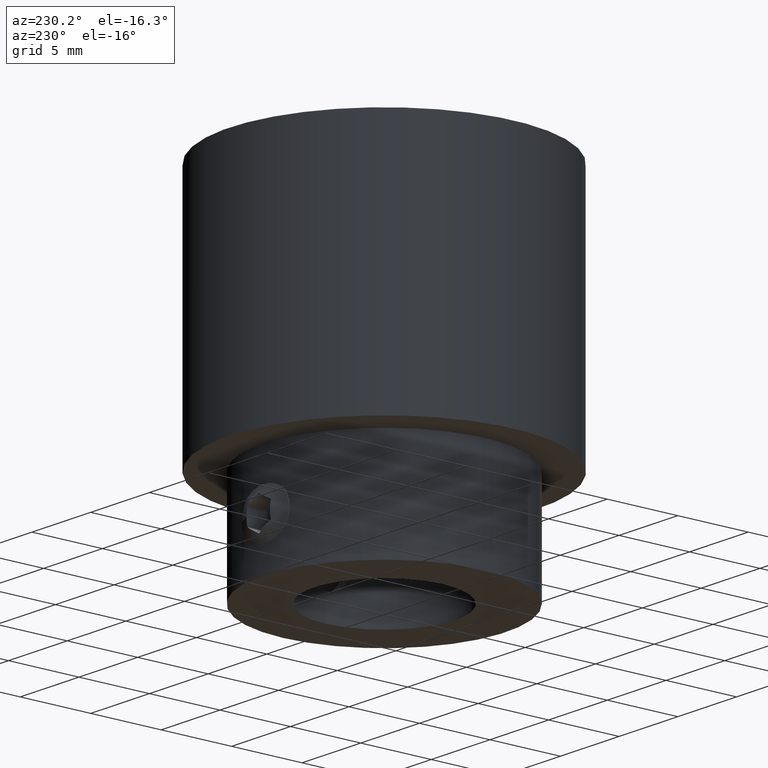
[diagram: clean part render]
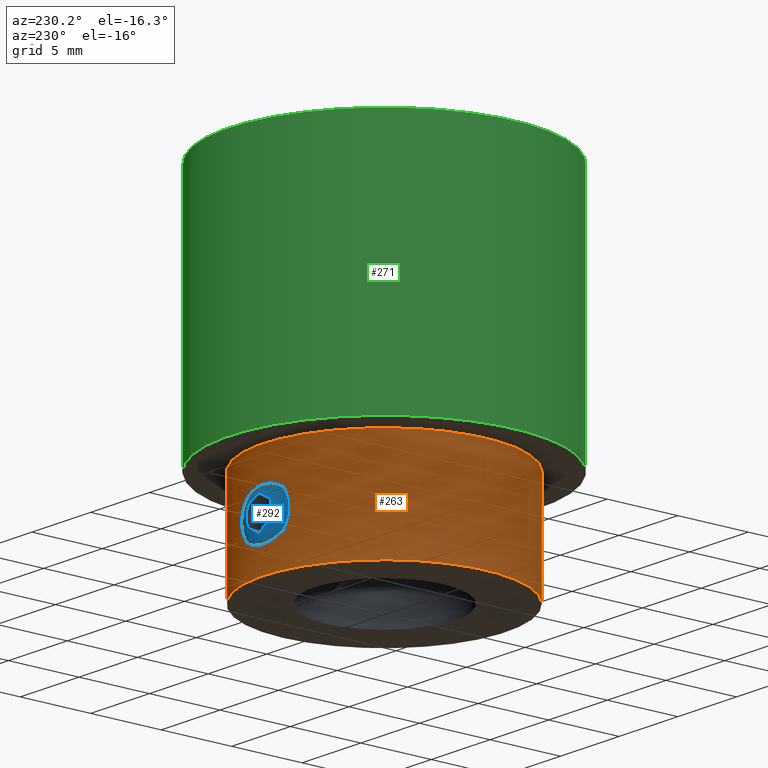
[diagram: same view with three faces highlighted in distinct colors, each labeled with its STEP entity id]
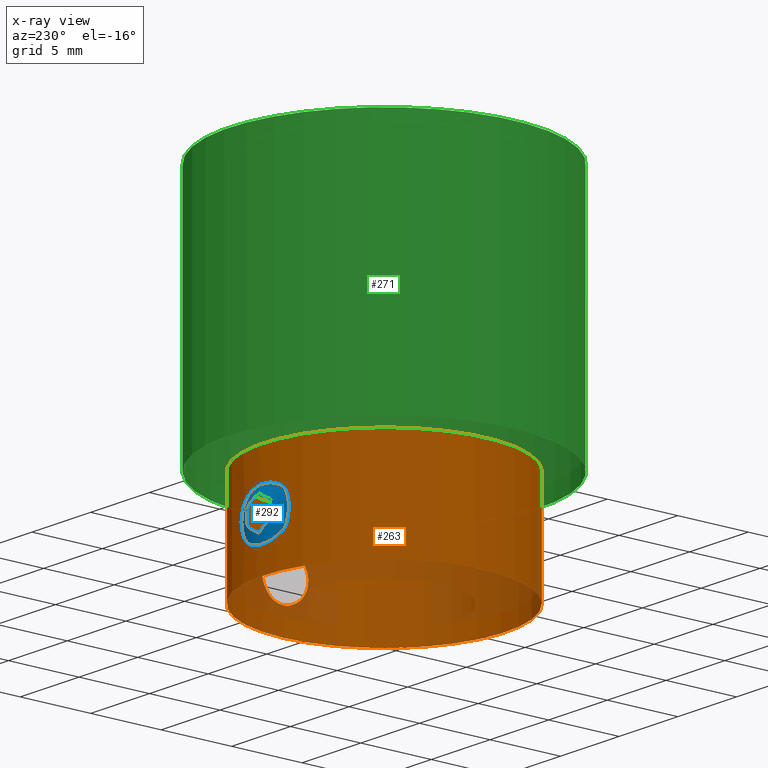
[diagram: x-ray of the same camera — body ghosted, the three highlighted faces saturated]
A machine part, auxiliary view with three faces highlighted in distinct colors.
The next image is the same camera in x-ray (body ghosted, the three faces saturated) — at least one of them is partly hidden behind the body in this view.
Their STEP definitions:

[orange] entity #263 — the highlighted cylindrical surface (bore or boss wall) has radius 8.6 mm, axis along (-0, 0, -1).
#263 = ADVANCED_FACE( '', ( #304, #305, #306, #307 ), #308, .T. );
#304 = FACE_BOUND( '', #396, .T. );
#305 = FACE_OUTER_BOUND( '', #397, .T. );
#306 = FACE_BOUND( '', #398, .T. );
#307 = FACE_OUTER_BOUND( '', #399, .T. );
#308 = CYLINDRICAL_SURFACE( '', #400, 8.60000000000000 );
#396 = EDGE_LOOP( '', ( #488 ) );
#397 = EDGE_LOOP( '', ( #489 ) );
#398 = EDGE_LOOP( '', ( #490 ) );
#399 = EDGE_LOOP( '', ( #491 ) );
#400 = AXIS2_PLACEMENT_3D( '', #492, #493, #494 );
#488 = ORIENTED_EDGE( '', *, *, #704, .F. );
#489 = ORIENTED_EDGE( '', *, *, #705, .T. );
#490 = ORIENTED_EDGE( '', *, *, #706, .F. );
#491 = ORIENTED_EDGE( '', *, *, #707, .T. );
#492 = CARTESIAN_POINT( '', ( 0.000000000000000, 0.000000000000000, -25.0000000000000 ) );
#493 = DIRECTION( '', ( -0.000000000000000, 0.000000000000000, -1.00000000000000 ) );
#494 = DIRECTION( '', ( 1.00000000000000, 0.000000000000000, 0.000000000000000 ) );
#704 = EDGE_CURVE( '', #762, #762, #763, .T. );
#705 = EDGE_CURVE( '', #764, #764, #765, .T. );
#706 = EDGE_CURVE( '', #766, #766, #767, .T. );
#707 = EDGE_CURVE( '', #768, #768, #769, .F. );
#762 = VERTEX_POINT( '', #862 );
#763 = B_SPLINE_CURVE_WITH_KNOTS( '', 3, ( #863, #864, #865, #866, #867, #868, #869, #870, #871, #872, #873, #874, #875, #876, #877, #878, #879, #880, #881, #882, #883, #884, #885, #886, #887, #888, #889, #890, #891, #892, #893, #894, #895, #896, #897, #898, #899, #900, #901, #902, #903, #904, #905, #906, #907, #908, #909, #910, #911, #912, #913, #914 ), .UNSPECIFIED., .T., .F., ( 2, 2, 2, 2, 2, 2, 2, 2, 2, 2, 2, 2, 2, 2, 2, 2, 2, 2, 2, 2, 2, 2, 2, 2, 2, 2, 2, 2 ), ( -0.000646285377300705, 0.000000000000000, 0.000323142688650352, 0.000646285377300703, 0.000969428065951055, 0.00129257075460141, 0.00193885613190212, 0.00258514150920283, 0.00290828419785318, 0.00323142688650353, 0.00387771226380423, 0.00420085495245458, 0.00452399764110493, 0.00484714032975529, 0.00517028301840564, 0.00581656839570634, 0.00613971108435670, 0.00646285377300705, 0.00678599646165740, 0.00710913915030776, 0.00775542452760846, 0.00807856721625882, 0.00840170990490917, 0.00872485259355952, 0.00904799528220987, 0.00969428065951058, 0.0103405660368113, 0.0106637087254616 ), .UNSPECIFIED. );
#764 = VERTEX_POINT( '', #915 );
#765 = CIRCLE( '', #916, 8.60000000000000 );
#766 = VERTEX_POINT( '', #917 );
#767 = B_SPLINE_CURVE_WITH_KNOTS( '', 3, ( #918, #919, #920, #921, #922, #923, #924, #925, #926, #927, #928, #929, #930, #931, #932, #933, #934, #935, #936, #937, #938, #939, #940, #941, #942, #943, #944, #945, #946, #947, #948, #949, #950, #951, #952, #953, #954, #955, #956, #957, #958, #959, #960, #961, #962, #963, #964, #965, #966, #967, #968, #969 ), .UNSPECIFIED., .T., .F., ( 2, 2, 2, 2, 2, 2, 2, 2, 2, 2, 2, 2, 2, 2, 2, 2, 2, 2, 2, 2, 2, 2, 2, 2, 2, 2, 2, 2 ), ( -0.000646285377300707, 0.000000000000000, 0.000323142688650356, 0.000646285377300713, 0.000969428065951070, 0.00129257075460143, 0.00193885613190213, 0.00258514150920284, 0.00290828419785319, 0.00323142688650354, 0.00387771226380423, 0.00420085495245458, 0.00452399764110494, 0.00484714032975529, 0.00517028301840564, 0.00581656839570634, 0.00613971108435670, 0.00646285377300705, 0.00678599646165740, 0.00710913915030776, 0.00775542452760846, 0.00807856721625881, 0.00840170990490917, 0.00872485259355952, 0.00904799528220987, 0.00969428065951058, 0.0103405660368113, 0.0106637087254616 ), .UNSPECIFIED. );
#768 = VERTEX_POINT( '', #970 );
#769 = CIRCLE( '', #971, 8.60000000000000 );
#862 = CARTESIAN_POINT( '', ( -0.205798515715232, 8.59753726196814, -19.8628845578487 ) );
#863 = CARTESIAN_POINT( '', ( -0.422581525443693, 8.59234814556479, -19.8901359174571 ) );
#864 = CARTESIAN_POINT( '', ( -0.0974070108510024, 8.60013182016981, -19.8492588780446 ) );
#865 = CARTESIAN_POINT( '', ( 0.0105193314926673, 8.60066528858247, -19.8465186378541 ) );
#866 = CARTESIAN_POINT( '', ( 0.225478745194036, 8.59771559183183, -19.8619308296764 ) );
#867 = CARTESIAN_POINT( '', ( 0.333695845721433, 8.59415850167469, -19.8804762068752 ) );
#868 = CARTESIAN_POINT( '', ( 0.542357850730834, 8.58351683350768, -19.9379314369402 ) );
#869 = CARTESIAN_POINT( '', ( 0.642715734114635, 8.57649621742749, -19.9764995935637 ) );
#870 = CARTESIAN_POINT( '', ( 0.835605937730236, 8.55985593332367, -20.0731504213407 ) );
#871 = CARTESIAN_POINT( '', ( 0.928262108096357, 8.55018216850542, -20.1316577386514 ) );
#872 = CARTESIAN_POINT( '', ( 1.18254755280953, 8.52001900873270, -20.3294421725412 ) );
#873 = CARTESIAN_POINT( '', ( 1.32711639114375, 8.49766941046281, -20.4963410382691 ) );
#874 = CARTESIAN_POINT( '', ( 1.53972322128648, 8.46173006701283, -20.8692689725910 ) );
#875 = CARTESIAN_POINT( '', ( 1.60997658106643, 8.44800172924577, -21.0792701184449 ) );
#876 = CARTESIAN_POINT( '', ( 1.65051410313653, 8.44014174333452, -21.4003117281154 ) );
#877 = CARTESIAN_POINT( '', ( 1.65349854536264, 8.43955002920670, -21.5104536355721 ) );
#878 = CARTESIAN_POINT( '', ( 1.63802475876778, 8.44256696891786, -21.7259238979763 ) );
#879 = CARTESIAN_POINT( '', ( 1.61987078409112, 8.44611572884039, -21.8320736181738 ) );
#880 = CARTESIAN_POINT( '', ( 1.53380231609799, 8.46231998352700, -22.1457301567129 ) );
#881 = CARTESIAN_POINT( '', ( 1.43590495484837, 8.48034872776598, -22.3412698084271 ) );
#882 = CARTESIAN_POINT( '', ( 1.23622255670825, 8.51095107413124, -22.5981886325983 ) );
#883 = CARTESIAN_POINT( '', ( 1.16230413372087, 8.52148638656255, -22.6760411845873 ) );
#884 = CARTESIAN_POINT( '', ( 1.00012482021235, 8.54203907036432, -22.8167285639437 ) );
#885 = CARTESIAN_POINT( '', ( 0.910760570829389, 8.55215568100735, -22.8800858599048 ) );
#886 = CARTESIAN_POINT( '', ( 0.723445823893118, 8.57003370760322, -22.9868584122163 ) );
#887 = CARTESIAN_POINT( '', ( 0.625409529792178, 8.57784369327035, -23.0306978684398 ) );
#888 = CARTESIAN_POINT( '', ( 0.420465275734565, 8.59032877473465, -23.0991816645718 ) );
#889 = CARTESIAN_POINT( '', ( 0.313305951526759, 8.59495625674002, -23.1235603266962 ) );
#890 = CARTESIAN_POINT( '', ( -0.00738672665648147, 8.60265541181417, -23.1639953278196 ) );
#891 = CARTESIAN_POINT( '', ( -0.228906515948489, 8.59946530491471, -23.1481609896733 ) );
#892 = CARTESIAN_POINT( '', ( -0.540280051367268, 8.58364129591652, -23.0627477967752 ) );
#893 = CARTESIAN_POINT( '', ( -0.642424180531690, 8.57652111348330, -23.0236446496159 ) );
#894 = CARTESIAN_POINT( '', ( -0.835852518349314, 8.55983491694353, -22.9267278694986 ) );
#895 = CARTESIAN_POINT( '', ( -0.926653803998528, 8.55035918041763, -22.8694505326269 ) );
#896 = CARTESIAN_POINT( '', ( -1.09668863061983, 8.53021708012675, -22.7374797296304 ) );
#897 = CARTESIAN_POINT( '', ( -1.17622878445281, 8.51948025150054, -22.6621199350582 ) );
#898 = CARTESIAN_POINT( '', ( -1.31696449888344, 8.49886241903960, -22.4998206866812 ) );
#899 = CARTESIAN_POINT( '', ( -1.37910103460244, 8.48887794726028, -22.4123136130675 ) );
#900 = CARTESIAN_POINT( '', ( -1.54026745638570, 8.46164582284633, -22.1300947005951 ) );
#901 = CARTESIAN_POINT( '', ( -1.60967417969636, 8.44806028075725, -21.9229185698425 ) );
#902 = CARTESIAN_POINT( '', ( -1.65062851759585, 8.44011960015507, -21.5988851216008 ) );
#903 = CARTESIAN_POINT( '', ( -1.65349552219452, 8.43955050195886, -21.4911038832028 ) );
#904 = CARTESIAN_POINT( '', ( -1.63827512531940, 8.44251826949702, -21.2759884008112 ) );
#905 = CARTESIAN_POINT( '', ( -1.61976066922721, 8.44613648338648, -21.1675189445467 ) );
#906 = CARTESIAN_POINT( '', ( -1.56258876366552, 8.45690028776701, -20.9591815152225 ) );
#907 = CARTESIAN_POINT( '', ( -1.52413939012815, 8.46400655964568, -20.8587639497587 ) );
#908 = CARTESIAN_POINT( '', ( -1.42745405082271, 8.48084800329867, -20.6653986068433 ) );
#909 = CARTESIAN_POINT( '', ( -1.36916354266509, 8.49057260881214, -20.5729580889012 ) );
#910 = CARTESIAN_POINT( '', ( -1.17174997299425, 8.52084092851667, -20.3186600629896 ) );
#911 = CARTESIAN_POINT( '', ( -1.00498481278817, 8.54313124196799, -20.1738693473668 ) );
#912 = CARTESIAN_POINT( '', ( -0.632060907929131, 8.57878691308347, -19.9608067078966 ) );
#913 = CARTESIAN_POINT( '', ( -0.422581525443693, 8.59234814556479, -19.8901359174571 ) );
#914 = CARTESIAN_POINT( '', ( -0.0974070108510024, 8.60013182016981, -19.8492588780446 ) );
#915 = CARTESIAN_POINT( '', ( 8.60000000000000, 0.000000000000000, -25.0000000000000 ) );
#916 = AXIS2_PLACEMENT_3D( '', #1258, #1259, #1260 );
#917 = CARTESIAN_POINT( '', ( 8.59753726196814, 0.205798515715233, -19.8628845578487 ) );
#918 = CARTESIAN_POINT( '', ( 8.59234814556479, 0.422581525443691, -19.8901359174570 ) );
#919 = CARTESIAN_POINT( '', ( 8.60013182016980, 0.0974070108510030, -19.8492588780446 ) );
#920 = CARTESIAN_POINT( '', ( 8.60066528858247, -0.0105193314926668, -19.8465186378541 ) );
#921 = CARTESIAN_POINT( '', ( 8.59771559183184, -0.225478745194036, -19.8619308296764 ) );
#922 = CARTESIAN_POINT( '', ( 8.59415850167469, -0.333695845721432, -19.8804762068752 ) );
#923 = CARTESIAN_POINT( '', ( 8.58351683350768, -0.542357850730833, -19.9379314369402 ) );
#924 = CARTESIAN_POINT( '', ( 8.57649621742748, -0.642715734114634, -19.9764995935637 ) );
#925 = CARTESIAN_POINT( '', ( 8.55985593332367, -0.835605937730235, -20.0731504213407 ) );
#926 = CARTESIAN_POINT( '', ( 8.55018216850542, -0.928262108096353, -20.1316577386513 ) );
#927 = CARTESIAN_POINT( '', ( 8.52001900873270, -1.18254755280952, -20.3294421725412 ) );
#928 = CARTESIAN_POINT( '', ( 8.49766941046281, -1.32711639114375, -20.4963410382691 ) );
#929 = CARTESIAN_POINT( '', ( 8.46173006701282, -1.53972322128648, -20.8692689725910 ) );
#930 = CARTESIAN_POINT( '', ( 8.44800172924576, -1.60997658106643, -21.0792701184449 ) );
#931 = CARTESIAN_POINT( '', ( 8.44014174333452, -1.65051410313653, -21.4003117281154 ) );
#932 = CARTESIAN_POINT( '', ( 8.43955002920670, -1.65349854536264, -21.5104536355721 ) );
#933 = CARTESIAN_POINT( '', ( 8.44256696891786, -1.63802475876778, -21.7259238979763 ) );
#934 = CARTESIAN_POINT( '', ( 8.44611572884039, -1.61987078409112, -21.8320736181738 ) );
#935 = CARTESIAN_POINT( '', ( 8.46231998352699, -1.53380231609799, -22.1457301567129 ) );
#936 = CARTESIAN_POINT( '', ( 8.48034872776598, -1.43590495484837, -22.3412698084271 ) );
#937 = CARTESIAN_POINT( '', ( 8.51095107413124, -1.23622255670824, -22.5981886325983 ) );
#938 = CARTESIAN_POINT( '', ( 8.52148638656255, -1.16230413372087, -22.6760411845873 ) );
#939 = CARTESIAN_POINT( '', ( 8.54203907036432, -1.00012482021235, -22.8167285639437 ) );
#940 = CARTESIAN_POINT( '', ( 8.55215568100735, -0.910760570829389, -22.8800858599048 ) );
#941 = CARTESIAN_POINT( '', ( 8.57003370760322, -0.723445823893119, -22.9868584122163 ) );
#942 = CARTESIAN_POINT( '', ( 8.57784369327035, -0.625409529792178, -23.0306978684398 ) );
#943 = CARTESIAN_POINT( '', ( 8.59032877473466, -0.420465275734566, -23.0991816645718 ) );
#944 = CARTESIAN_POINT( '', ( 8.59495625674002, -0.313305951526760, -23.1235603266962 ) );
#945 = CARTESIAN_POINT( '', ( 8.60265541181417, 0.00738672665648041, -23.1639953278196 ) );
#946 = CARTESIAN_POINT( '', ( 8.59946530491471, 0.228906515948489, -23.1481609896733 ) );
#947 = CARTESIAN_POINT( '', ( 8.58364129591652, 0.540280051367266, -23.0627477967752 ) );
#948 = CARTESIAN_POINT( '', ( 8.57652111348330, 0.642424180531690, -23.0236446496159 ) );
#949 = CARTESIAN_POINT( '', ( 8.55983491694353, 0.835852518349314, -22.9267278694986 ) );
#950 = CARTESIAN_POINT( '', ( 8.55035918041764, 0.926653803998528, -22.8694505326269 ) );
#951 = CARTESIAN_POINT( '', ( 8.53021708012676, 1.09668863061983, -22.7374797296304 ) );
#952 = CARTESIAN_POINT( '', ( 8.51948025150054, 1.17622878445281, -22.6621199350582 ) );
#953 = CARTESIAN_POINT( '', ( 8.49886241903960, 1.31696449888344, -22.4998206866812 ) );
#954 = CARTESIAN_POINT( '', ( 8.48887794726028, 1.37910103460244, -22.4123136130675 ) );
#955 = CARTESIAN_POINT( '', ( 8.46164582284633, 1.54026745638570, -22.1300947005951 ) );
#956 = CARTESIAN_POINT( '', ( 8.44806028075725, 1.60967417969636, -21.9229185698425 ) );
#957 = CARTESIAN_POINT( '', ( 8.44011960015507, 1.65062851759585, -21.5988851216008 ) );
#958 = CARTESIAN_POINT( '', ( 8.43955050195886, 1.65349552219452, -21.4911038832028 ) );
#959 = CARTESIAN_POINT( '', ( 8.44251826949702, 1.63827512531940, -21.2759884008112 ) );
#960 = CARTESIAN_POINT( '', ( 8.44613648338649, 1.61976066922721, -21.1675189445467 ) );
#961 = CARTESIAN_POINT( '', ( 8.45690028776701, 1.56258876366552, -20.9591815152225 ) );
#962 = CARTESIAN_POINT( '', ( 8.46400655964568, 1.52413939012815, -20.8587639497587 ) );
#963 = CARTESIAN_POINT( '', ( 8.48084800329867, 1.42745405082271, -20.6653986068433 ) );
#964 = CARTESIAN_POINT( '', ( 8.49057260881214, 1.36916354266510, -20.5729580889012 ) );
#965 = CARTESIAN_POINT( '', ( 8.52084092851667, 1.17174997299426, -20.3186600629896 ) );
#966 = CARTESIAN_POINT( '', ( 8.54313124196799, 1.00498481278817, -20.1738693473668 ) );
#967 = CARTESIAN_POINT( '', ( 8.57878691308347, 0.632060907929132, -19.9608067078966 ) );
#968 = CARTESIAN_POINT( '', ( 8.59234814556479, 0.422581525443691, -19.8901359174570 ) );
#969 = CARTESIAN_POINT( '', ( 8.60013182016980, 0.0974070108510030, -19.8492588780446 ) );
#970 = CARTESIAN_POINT( '', ( 8.60000000000000, 0.000000000000000, -17.5000000000000 ) );
#971 = AXIS2_PLACEMENT_3D( '', #1261, #1262, #1263 );
#1258 = CARTESIAN_POINT( '', ( 0.000000000000000, 0.000000000000000, -25.0000000000000 ) );
#1259 = DIRECTION( '', ( 0.000000000000000, 0.000000000000000, 1.00000000000000 ) );
#1260 = DIRECTION( '', ( 1.00000000000000, 0.000000000000000, -0.000000000000000 ) );
#1261 = CARTESIAN_POINT( '', ( 0.000000000000000, 0.000000000000000, -17.5000000000000 ) );
#1262 = DIRECTION( '', ( 0.000000000000000, 0.000000000000000, 1.00000000000000 ) );
#1263 = DIRECTION( '', ( 1.00000000000000, 0.000000000000000, -0.000000000000000 ) );

[blue] entity #292 — the highlighted conical surface has half-angle 63.435 deg.
#292 = ADVANCED_FACE( '', ( #370, #371 ), #372, .T. );
#370 = FACE_OUTER_BOUND( '', #462, .T. );
#371 = FACE_BOUND( '', #463, .T. );
#372 = CONICAL_SURFACE( '', #464, 2.00000000000000, 1.10714871779409 );
#462 = EDGE_LOOP( '', ( #628 ) );
#463 = EDGE_LOOP( '', ( #629, #630, #631, #632, #633, #634 ) );
#464 = AXIS2_PLACEMENT_3D( '', #635, #636, #637 );
#628 = ORIENTED_EDGE( '', *, *, #740, .F. );
#629 = ORIENTED_EDGE( '', *, *, #741, .T. );
#630 = ORIENTED_EDGE( '', *, *, #742, .T. );
#631 = ORIENTED_EDGE( '', *, *, #743, .T. );
#632 = ORIENTED_EDGE( '', *, *, #744, .T. );
#633 = ORIENTED_EDGE( '', *, *, #745, .T. );
#634 = ORIENTED_EDGE( '', *, *, #746, .T. );
#635 = CARTESIAN_POINT( '', ( 4.19714393776968E-016, 8.45445622475297, -21.5000000000000 ) );
#636 = DIRECTION( '', ( -6.12323399573677E-017, -1.00000000000000, -0.000000000000000 ) );
#637 = DIRECTION( '', ( 1.00000000000000, -6.12323399573677E-017, 0.000000000000000 ) );
#740 = EDGE_CURVE( '', #826, #826, #827, .T. );
#741 = EDGE_CURVE( '', #828, #829, #830, .T. );
#742 = EDGE_CURVE( '', #829, #831, #832, .T. );
#743 = EDGE_CURVE( '', #831, #833, #834, .T. );
#744 = EDGE_CURVE( '', #833, #835, #836, .F. );
#745 = EDGE_CURVE( '', #835, #837, #838, .T. );
#746 = EDGE_CURVE( '', #837, #828, #839, .T. );
#826 = VERTEX_POINT( '', #1180 );
#827 = CIRCLE( '', #1181, 2.00000000000000 );
#828 = VERTEX_POINT( '', #1182 );
#829 = VERTEX_POINT( '', #1183 );
#830 = B_SPLINE_CURVE_WITH_KNOTS( '', 3, ( #1184, #1185, #1186, #1187, #1188, #1189 ), .UNSPECIFIED., .F., .F., ( 4, 2, 4 ), ( 0.00103458309332886, 0.00161823594737898, 0.00220188880142910 ), .UNSPECIFIED. );
#831 = VERTEX_POINT( '', #1190 );
#832 = B_SPLINE_CURVE_WITH_KNOTS( '', 3, ( #1191, #1192, #1193, #1194, #1195, #1196 ), .UNSPECIFIED., .F., .F., ( 4, 2, 4 ), ( 2.34956865817659E-007, 0.000579233426840286, 0.00115823189681475 ), .UNSPECIFIED. );
#833 = VERTEX_POINT( '', #1197 );
#834 = B_SPLINE_CURVE_WITH_KNOTS( '', 3, ( #1198, #1199, #1200, #1201, #1202, #1203 ), .UNSPECIFIED., .F., .F., ( 4, 2, 4 ), ( 2.34956865817798E-007, 0.000579233426840286, 0.00115823189681475 ), .UNSPECIFIED. );
#835 = VERTEX_POINT( '', #1204 );
#836 = B_SPLINE_CURVE_WITH_KNOTS( '', 3, ( #1205, #1206, #1207, #1208, #1209, #1210 ), .UNSPECIFIED., .F., .F., ( 4, 2, 4 ), ( 0.00103458309332886, 0.00161823594737898, 0.00220188880142910 ), .UNSPECIFIED. );
#837 = VERTEX_POINT( '', #1211 );
#838 = B_SPLINE_CURVE_WITH_KNOTS( '', 3, ( #1212, #1213, #1214, #1215, #1216, #1217 ), .UNSPECIFIED., .F., .F., ( 4, 2, 4 ), ( 2.34956865817659E-007, 0.000579233426840286, 0.00115823189681475 ), .UNSPECIFIED. );
#839 = B_SPLINE_CURVE_WITH_KNOTS( '', 3, ( #1218, #1219, #1220, #1221, #1222, #1223 ), .UNSPECIFIED., .F., .F., ( 4, 2, 4 ), ( 2.34956865817826E-007, 0.000579233426840285, 0.00115823189681475 ), .UNSPECIFIED. );
#1180 = CARTESIAN_POINT( '', ( 2.00000000000000, 8.45445622475297, -21.5000000000000 ) );
#1181 = AXIS2_PLACEMENT_3D( '', #1309, #1310, #1311 );
#1182 = CARTESIAN_POINT( '', ( 1.00000000000000, 8.87710595556334, -22.0773502691896 ) );
#1183 = CARTESIAN_POINT( '', ( 1.00000000000000, 8.87710595556334, -20.9226497308104 ) );
#1184 = CARTESIAN_POINT( '', ( 1.00000000000000, 8.87710595556334, -22.0773502691896 ) );
#1185 = CARTESIAN_POINT( '', ( 1.00000000000000, 8.92445345520008, -21.8879602706427 ) );
#1186 = CARTESIAN_POINT( '', ( 1.00000000000000, 8.95443028101844, -21.6938974989258 ) );
#1187 = CARTESIAN_POINT( '', ( 1.00000000000000, 8.95448213263242, -21.3066380760690 ) );
#1188 = CARTESIAN_POINT( '', ( 1.00000000000000, 8.92406099729043, -21.1104698977178 ) );
#1189 = CARTESIAN_POINT( '', ( 1.00000000000000, 8.87710595556356, -20.9226497308103 ) );
#1190 = CARTESIAN_POINT( '', ( 4.45594225776839E-016, 8.87710595556334, -20.3452994616207 ) );
#1191 = CARTESIAN_POINT( '', ( 1.00000000000000, 8.87710595556334, -20.9226497308104 ) );
#1192 = CARTESIAN_POINT( '', ( 0.835714454593608, 8.92453110749551, -20.8277994269460 ) );
#1193 = CARTESIAN_POINT( '', ( 0.670138468625594, 8.95418263961288, -20.7322040868761 ) );
#1194 = CARTESIAN_POINT( '', ( 0.334720282664987, 8.95472587532345, -20.5385503069206 ) );
#1195 = CARTESIAN_POINT( '', ( 0.164913583655278, 8.92471240652170, -20.4405123635371 ) );
#1196 = CARTESIAN_POINT( '', ( -2.36222292647396E-014, 8.87710595556349, -20.3452994616207 ) );
#1197 = CARTESIAN_POINT( '', ( -1.00000000000000, 8.87710595556334, -20.9226497308104 ) );
#1198 = CARTESIAN_POINT( '', ( -2.85263678014781E-016, 8.87710595556334, -20.3452994616207 ) );
#1199 = CARTESIAN_POINT( '', ( -0.164285545406392, 8.92453110749551, -20.4401497654851 ) );
#1200 = CARTESIAN_POINT( '', ( -0.329861531374405, 8.95418263961287, -20.5357451055551 ) );
#1201 = CARTESIAN_POINT( '', ( -0.665279717335012, 8.95472587532345, -20.7293988855105 ) );
#1202 = CARTESIAN_POINT( '', ( -0.835086416344722, 8.92471240652170, -20.8274368288940 ) );
#1203 = CARTESIAN_POINT( '', ( -1.00000000000002, 8.87710595556349, -20.9226497308104 ) );
#1204 = CARTESIAN_POINT( '', ( -0.999999999999999, 8.87710595556334, -22.0773502691896 ) );
#1205 = CARTESIAN_POINT( '', ( -0.999999999999999, 8.87710595556334, -22.0773502691896 ) );
#1206 = CARTESIAN_POINT( '', ( -0.999999999999999, 8.92445345520008, -21.8879602706427 ) );
#1207 = CARTESIAN_POINT( '', ( -0.999999999999999, 8.95443028101844, -21.6938974989258 ) );
#1208 = CARTESIAN_POINT( '', ( -0.999999999999999, 8.95448213263242, -21.3066380760690 ) );
#1209 = CARTESIAN_POINT( '', ( -1.00000000000000, 8.92406099729043, -21.1104698977178 ) );
#1210 = CARTESIAN_POINT( '', ( -1.00000000000000, 8.87710595556356, -20.9226497308103 ) );
#1211 = CARTESIAN_POINT( '', ( 7.05097233640973E-016, 8.87710595556334, -22.6547005383793 ) );
#1212 = CARTESIAN_POINT( '', ( -0.999999999999999, 8.87710595556334, -22.0773502691896 ) );
#1213 = CARTESIAN_POINT( '', ( -0.835714454593607, 8.92453110749551, -22.1722005730540 ) );
#1214 = CARTESIAN_POINT( '', ( -0.670138468625594, 8.95418263961287, -22.2677959131239 ) );
#1215 = CARTESIAN_POINT( '', ( -0.334720282664987, 8.95472587532345, -22.4614496930794 ) );
#1216 = CARTESIAN_POINT( '', ( -0.164913583655277, 8.92471240652170, -22.5594876364629 ) );
#1217 = CARTESIAN_POINT( '', ( 2.47628236144631E-014, 8.87710595556349, -22.6547005383793 ) );
#1218 = CARTESIAN_POINT( '', ( 1.45913916086926E-015, 8.87710595556334, -22.6547005383793 ) );
#1219 = CARTESIAN_POINT( '', ( 0.164285545406393, 8.92453110749551, -22.5598502345149 ) );
#1220 = CARTESIAN_POINT( '', ( 0.329861531374406, 8.95418263961287, -22.4642548944449 ) );
#1221 = CARTESIAN_POINT( '', ( 0.665279717335013, 8.95472587532345, -22.2706011144895 ) );
#1222 = CARTESIAN_POINT( '', ( 0.835086416344723, 8.92471240652170, -22.1725631711060 ) );
#1223 = CARTESIAN_POINT( '', ( 1.00000000000002, 8.87710595556349, -22.0773502691896 ) );
#1309 = CARTESIAN_POINT( '', ( 4.19714393776968E-016, 8.45445622475297, -21.5000000000000 ) );
#1310 = DIRECTION( '', ( -6.12323399573677E-017, -1.00000000000000, 0.000000000000000 ) );
#1311 = DIRECTION( '', ( 1.00000000000000, -6.12323399573677E-017, 0.000000000000000 ) );

[green] entity #271 — the highlighted cylindrical surface (bore or boss wall) has radius 11 mm, axis along (-0, 0, -1).
#271 = ADVANCED_FACE( '', ( #332, #333 ), #334, .T. );
#332 = FACE_OUTER_BOUND( '', #424, .T. );
#333 = FACE_OUTER_BOUND( '', #425, .T. );
#334 = CYLINDRICAL_SURFACE( '', #426, 11.0000000000000 );
#424 = EDGE_LOOP( '', ( #532 ) );
#425 = EDGE_LOOP( '', ( #533 ) );
#426 = AXIS2_PLACEMENT_3D( '', #534, #535, #536 );
#532 = ORIENTED_EDGE( '', *, *, #714, .T. );
#533 = ORIENTED_EDGE( '', *, *, #715, .F. );
#534 = CARTESIAN_POINT( '', ( 0.000000000000000, 0.000000000000000, -17.5000000000000 ) );
#535 = DIRECTION( '', ( -0.000000000000000, 0.000000000000000, -1.00000000000000 ) );
#536 = DIRECTION( '', ( 1.00000000000000, 0.000000000000000, 0.000000000000000 ) );
#714 = EDGE_CURVE( '', #782, #782, #783, .T. );
#715 = EDGE_CURVE( '', #784, #784, #785, .T. );
#782 = VERTEX_POINT( '', #1094 );
#783 = CIRCLE( '', #1095, 11.0000000000000 );
#784 = VERTEX_POINT( '', #1096 );
#785 = CIRCLE( '', #1097, 11.0000000000000 );
#1094 = CARTESIAN_POINT( '', ( 11.0000000000000, 0.000000000000000, -17.5000000000000 ) );
#1095 = AXIS2_PLACEMENT_3D( '', #1276, #1277, #1278 );
#1096 = CARTESIAN_POINT( '', ( 11.0000000000000, 0.000000000000000, 0.000000000000000 ) );
#1097 = AXIS2_PLACEMENT_3D( '', #1279, #1280, #1281 );
#1276 = CARTESIAN_POINT( '', ( 0.000000000000000, 0.000000000000000, -17.5000000000000 ) );
#1277 = DIRECTION( '', ( 0.000000000000000, 0.000000000000000, 1.00000000000000 ) );
#1278 = DIRECTION( '', ( 1.00000000000000, 0.000000000000000, 0.000000000000000 ) );
#1279 = CARTESIAN_POINT( '', ( 0.000000000000000, 0.000000000000000, 0.000000000000000 ) );
#1280 = DIRECTION( '', ( 0.000000000000000, 0.000000000000000, 1.00000000000000 ) );
#1281 = DIRECTION( '', ( 1.00000000000000, 0.000000000000000, 0.000000000000000 ) );